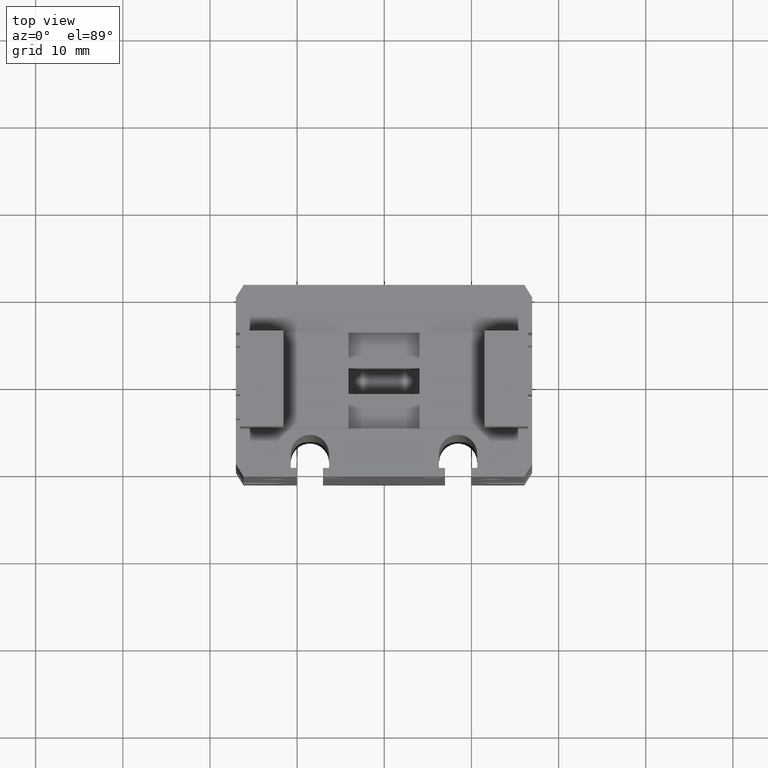
[diagram: clean part render]
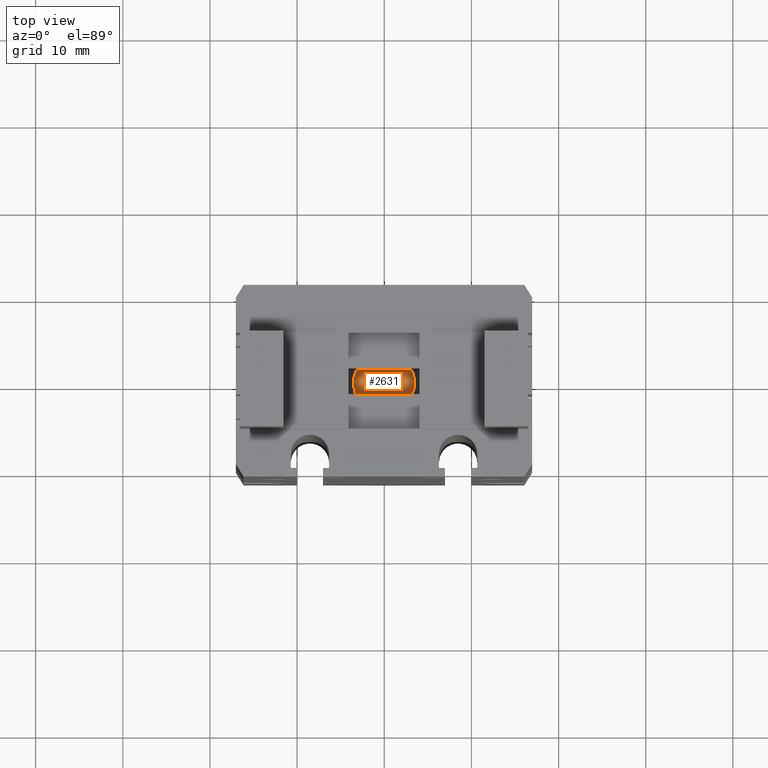
[diagram: same view with one face highlighted and labeled with its STEP entity id]
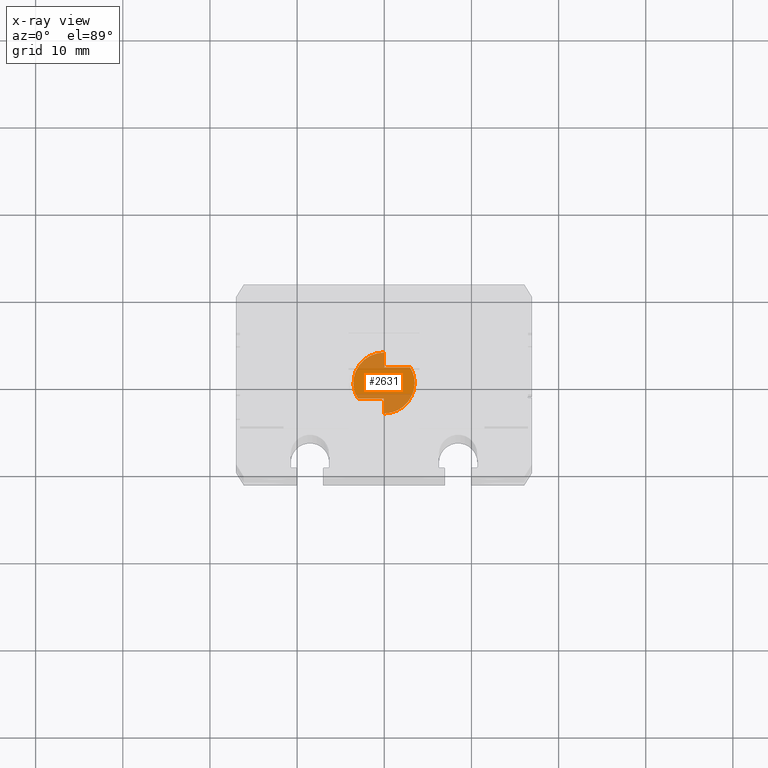
[diagram: x-ray of the same camera — body ghosted, the highlighted face saturated]
A machine part, top view. The second image highlights one B-rep face of the part: STEP entity #2631.
The next image is the same camera in x-ray: the body ghosted, the highlighted face saturated — about 36% of this face is hidden behind the body in this view.
In plain terms, the highlighted planar face has unit normal (0, 0, 1).
Its self-contained STEP definition (entity closure, byte-faithful):
#2361=CARTESIAN_POINT('',(-0.0308966109834547,3.46910338901652,42.85));
#2362=VERTEX_POINT('Vertex118',#2361);
#2369=CARTESIAN_POINT('',(-0.0308966109834705,1.76910338901655,42.85));
#2370=VERTEX_POINT('Vertex119',#2369);
#2371=CARTESIAN_POINT('',(-0.0308966109834626,2.61910338901653,42.85));
#2372=DIRECTION('',(-9.26138251056806E-015,-1.,0.));
#2373=VECTOR('',#2372,1.);
#2374=LINE('nurbsCrv157',#2371,#2373);
#2375=EDGE_CURVE('Edge157',#2362,#2370,#2374,.T.);
#2487=CARTESIAN_POINT('',(-0.0308966109834927,-3.53089661098347,42.85));
#2488=VERTEX_POINT('Vertex125',#2487);
#2495=CARTESIAN_POINT('',(-0.0308966109834868,-1.83089661098346,42.85));
#2496=VERTEX_POINT('Vertex126',#2495);
#2497=CARTESIAN_POINT('',(-0.0308966109834897,-2.68089661098346,42.85));
#2498=DIRECTION('',(-3.48169205884284E-015,-1.,0.));
#2499=VECTOR('',#2498,1.);
#2500=LINE('nurbsCrv168',#2497,#2499);
#2501=EDGE_CURVE('Edge168',#2496,#2488,#2500,.T.);
#2520=CARTESIAN_POINT('',(2.97076959297727,1.76910338901653,42.85));
#2521=VERTEX_POINT('Vertex127',#2520);
#2522=CARTESIAN_POINT('',(1.4699364909969,1.76910338901654,42.85));
#2523=DIRECTION('',(1.,-6.06585022006355E-015,0.));
#2524=VECTOR('',#2523,1.);
#2525=LINE('nurbsCrv170',#2522,#2524);
#2526=EDGE_CURVE('Edge170',#2370,#2521,#2525,.T.);
#2573=CARTESIAN_POINT('',(-3.0325628149442,-1.83089661098345,42.85));
#2574=VERTEX_POINT('Vertex129',#2573);
#2575=CARTESIAN_POINT('',(-1.53172971296384,-1.83089661098345,42.85));
#2576=DIRECTION('',(-1.,1.25755431391563E-015,0.));
#2577=VECTOR('',#2576,1.);
#2578=LINE('nurbsCrv173',#2575,#2577);
#2579=EDGE_CURVE('Edge173',#2496,#2574,#2578,.T.);
#2597=ORIENTED_EDGE('Edgeuse305',*,*,#2501,.T.);
#2598=CARTESIAN_POINT('',(3.46910338901654,-0.0308966109834864,42.85));
#2599=VERTEX_POINT('Vertex342',#2598);
#2600=CARTESIAN_POINT('',(-0.0308966109834493,-0.0308966109834797,42.85));
#2601=DIRECTION('',(-1.04485900753475E-014,9.92023020486612E-015,-1.));
#2602=DIRECTION('',(1.,-1.89729184743978E-015,-2.03012210217172E-015));
#2603=AXIS2_PLACEMENT_3D('',#2600,#2601,#2602);
#2604=CIRCLE('nurbsCrv908',#2603,3.49999999999999);
#2605=EDGE_CURVE('Edge504',#2599,#2488,#2604,.T.);
#2606=ORIENTED_EDGE('Edgeuse1009',*,*,#2605,.F.);
#2607=CARTESIAN_POINT('',(-0.0308966109834484,-0.0308966109834724,
42.8499999999999));
#2608=DIRECTION('',(0.,0.,-1.));
#2609=DIRECTION('',(0.85761891541735,0.514285714285715,1.82710989195455E-014));
#2610=AXIS2_PLACEMENT_3D('',#2607,#2608,#2609);
#2611=CIRCLE('nurbsCrv907',#2610,3.49999999999999);
#2612=EDGE_CURVE('Edge503',#2521,#2599,#2611,.T.);
#2613=ORIENTED_EDGE('Edgeuse1007',*,*,#2612,.F.);
#2614=ORIENTED_EDGE('Edgeuse307',*,*,#2526,.F.);
#2615=ORIENTED_EDGE('Edgeuse308',*,*,#2375,.F.);
#2616=CARTESIAN_POINT('',(-0.0308966109834561,-0.0308966109834764,42.85));
#2617=DIRECTION('',(-1.74143167922462E-014,2.18705825119043E-014,-1.));
#2618=DIRECTION('',(-0.857618915417355,-0.514285714285707,4.06024420434343E-015
));
#2619=AXIS2_PLACEMENT_3D('',#2616,#2617,#2618);
#2620=CIRCLE('nurbsCrv176',#2619,3.5);
#2621=EDGE_CURVE('Edge176',#2574,#2362,#2620,.T.);
#2622=ORIENTED_EDGE('Edgeuse309',*,*,#2621,.F.);
#2623=ORIENTED_EDGE('Edgeuse310',*,*,#2579,.F.);
#2624=EDGE_LOOP('',(#2597,#2606,#2613,#2614,#2615,#2622,#2623));
#2625=FACE_OUTER_BOUND('',#2624,.T.);
#2626=CARTESIAN_POINT('',(-0.0308966109834578,-0.0308966109834851,42.85));
#2627=DIRECTION('',(0.,0.,1.));
#2628=DIRECTION('',(-2.88369616785754E-016,1.,0.));
#2629=AXIS2_PLACEMENT_3D('',#2626,#2627,#2628);
#2630=PLANE('nurbsSrf62',#2629);
#2631=ADVANCED_FACE('Face62',(#2625),#2630,.T.);